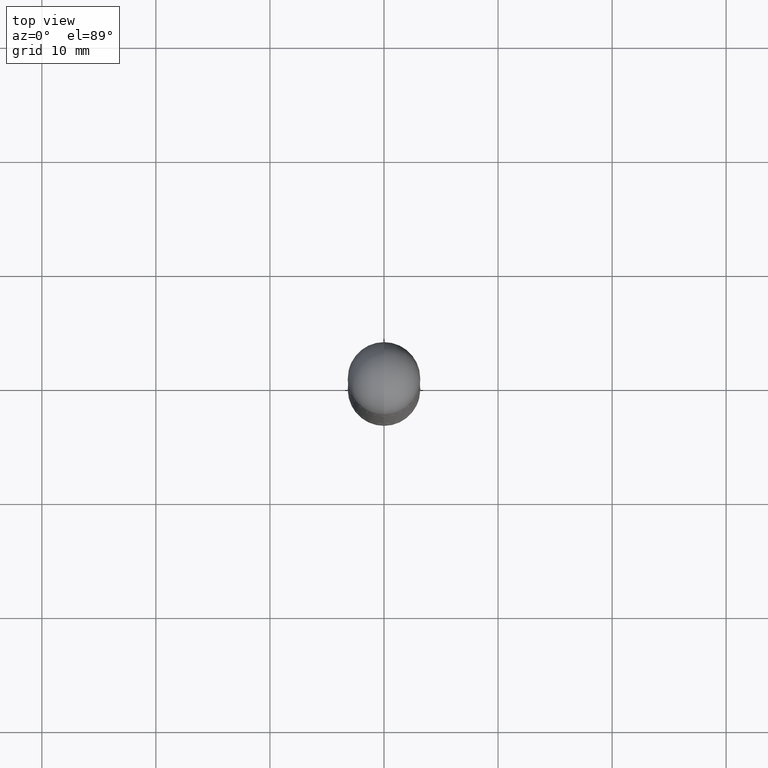
[diagram: clean part render]
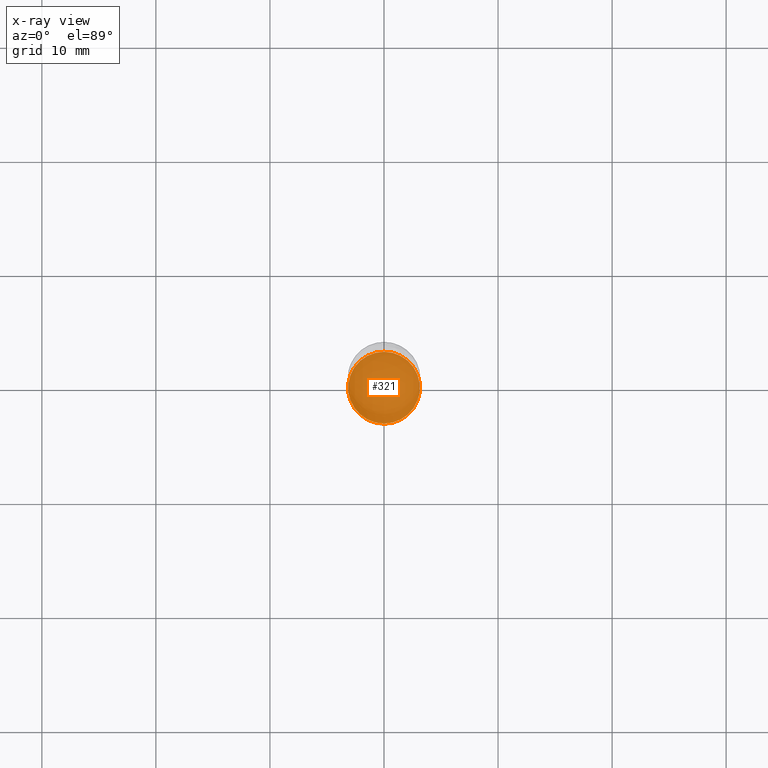
[diagram: x-ray — body ghosted, one internal face saturated and labeled with its STEP entity id]
A machine part, top view, then the same camera in x-ray: the body is ghosted and one INTERNAL B-rep face — a face not visible from any outside direction — is saturated and labeled: STEP entity #321.
In plain terms, the highlighted planar face has unit normal (-0, 0, 1).
Its self-contained STEP definition (entity closure, byte-faithful):
#50 = DIRECTION ( 'NONE',  ( -2.444771269362750222E-29, 3.492480251274133284E-15, 1.000000000000000000 ) ) ;
#53 = CARTESIAN_POINT ( 'NONE',  ( 4.889542538725501005E-29, -6.984960502548265780E-15, -2.000000000000000000 ) ) ;
#100 = CIRCLE ( 'NONE', #633, 0.1239999999999999991 ) ;
#176 = DIRECTION ( 'NONE',  ( -2.444771269362749942E-29, 3.492480251274133284E-15, 1.000000000000000000 ) ) ;
#258 = CIRCLE ( 'NONE', #399, 0.1239999999999999991 ) ;
#302 = VERTEX_POINT ( 'NONE', #615 ) ;
#321 = ADVANCED_FACE ( 'NONE', ( #359 ), #560, .F. ) ;
#329 = DIRECTION ( 'NONE',  ( -2.444771269362750222E-29, 3.492480251274133284E-15, 1.000000000000000000 ) ) ;
#359 = FACE_OUTER_BOUND ( 'NONE', #791, .T. ) ;
#362 = EDGE_CURVE ( 'NONE', #543, #302, #258, .T. ) ;
#367 = CARTESIAN_POINT ( 'NONE',  ( 4.889542538725499884E-29, -6.984960502548264991E-15, -1.999999999999999778 ) ) ;
#399 = AXIS2_PLACEMENT_3D ( 'NONE', #367, #50, #753 ) ;
#442 = CARTESIAN_POINT ( 'NONE',  ( 4.889542538725499884E-29, -6.984960502548264991E-15, -1.999999999999999778 ) ) ;
#460 = CARTESIAN_POINT ( 'NONE',  ( -8.658873720330480207E-16, -0.1240000000000069796, -1.999999999999999112 ) ) ;
#472 = AXIS2_PLACEMENT_3D ( 'NONE', #53, #176, #810 ) ;
#543 = VERTEX_POINT ( 'NONE', #460 ) ;
#560 = PLANE ( 'NONE',  #472 ) ;
#615 = CARTESIAN_POINT ( 'NONE',  ( 8.846257060213744265E-16, 0.1239999999999930186, -2.000000000000000444 ) ) ;
#633 = AXIS2_PLACEMENT_3D ( 'NONE', #442, #329, #772 ) ;
#696 = ORIENTED_EDGE ( 'NONE', *, *, #784, .F. ) ;
#748 = ORIENTED_EDGE ( 'NONE', *, *, #362, .F. ) ;
#753 = DIRECTION ( 'NONE',  ( -6.982962677686265922E-15, -1.000000000000000000, 4.406206441393973340E-15 ) ) ;
#772 = DIRECTION ( 'NONE',  ( -6.982962677686265922E-15, -1.000000000000000000, 4.406206441393973340E-15 ) ) ;
#784 = EDGE_CURVE ( 'NONE', #302, #543, #100, .T. ) ;
#791 = EDGE_LOOP ( 'NONE', ( #748, #696 ) ) ;
#810 = DIRECTION ( 'NONE',  ( -6.982962677686265922E-15, -1.000000000000000000, 3.492480251274133284E-15 ) ) ;